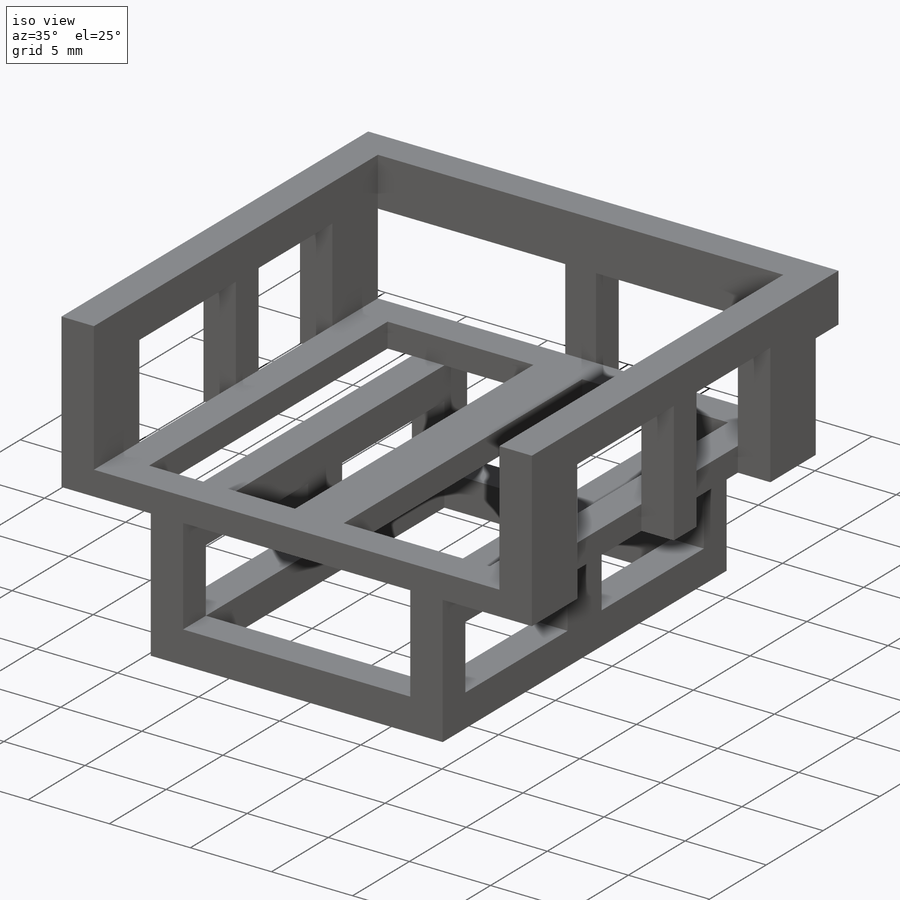
[diagram: iso view]
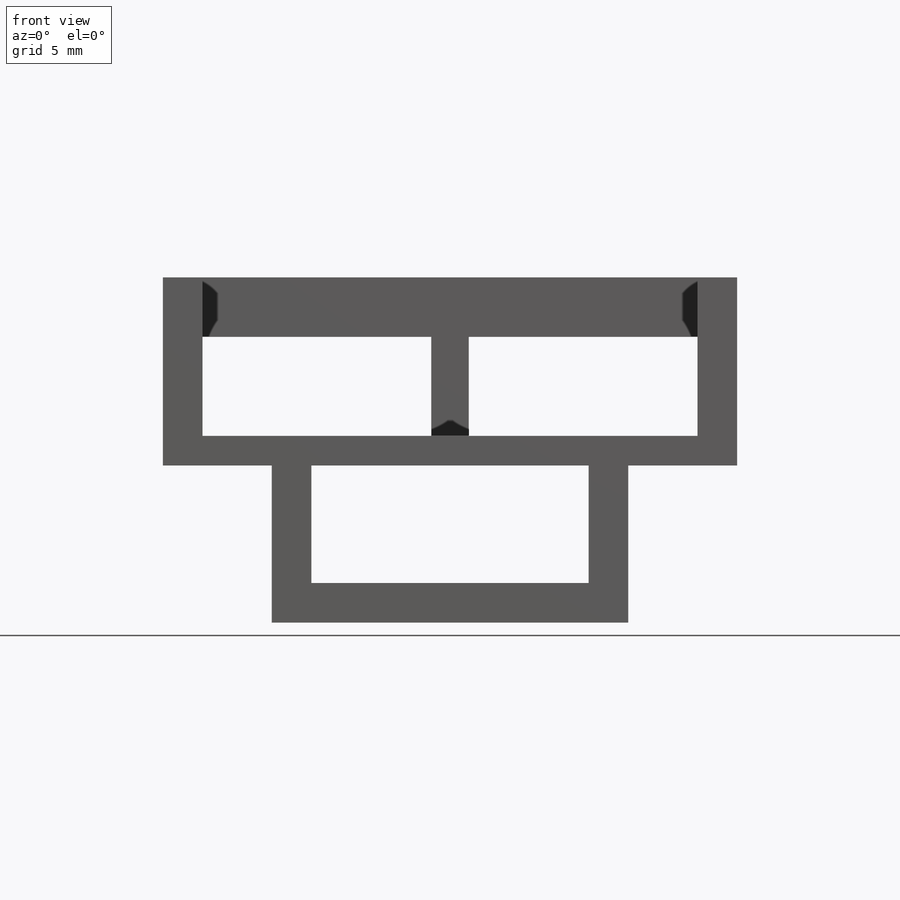
[diagram: front view]
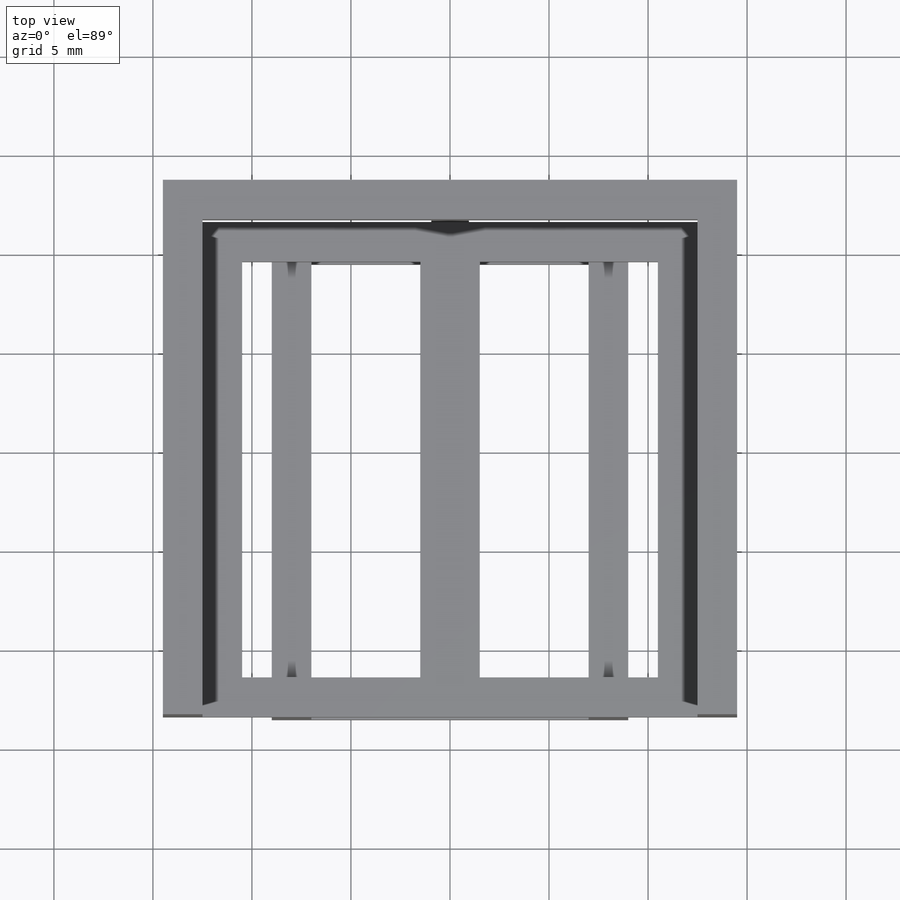
[diagram: top view]
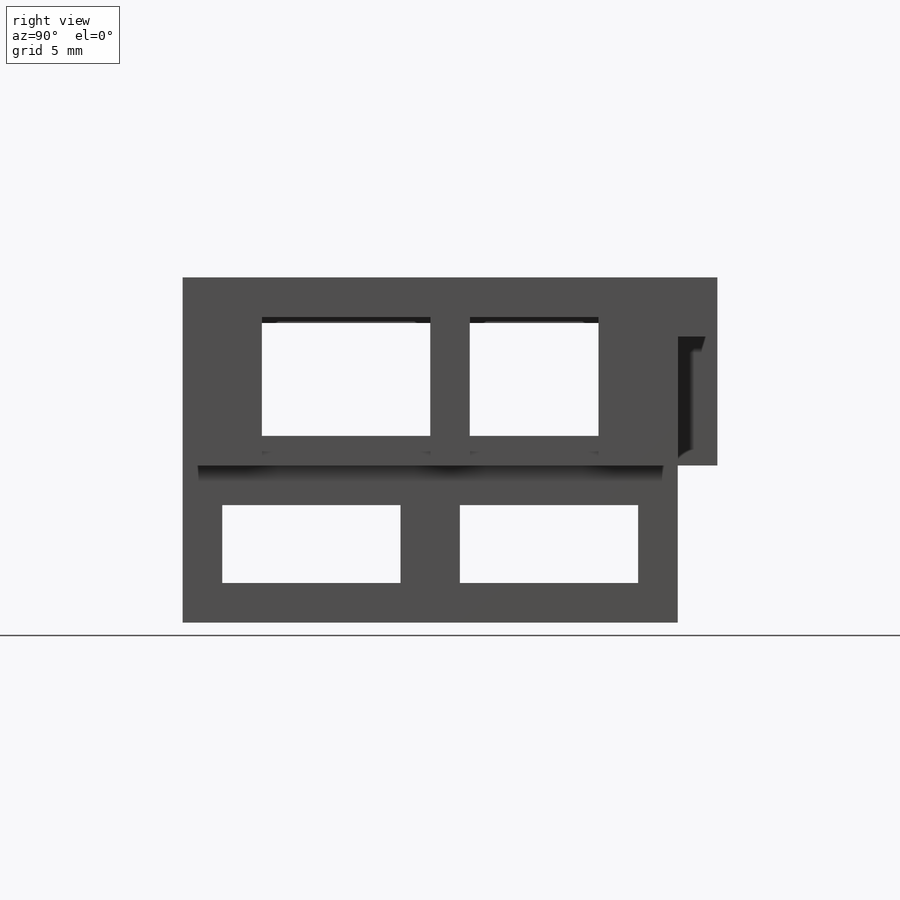
[diagram: right view]
SOLIDWORKS PART (.sldprt)
format: sldprt  version: not decoded by parser v0  size: 367,104 bytes
history: native  units: mm
features: sketch x7, extrude x6, plane x6, material x1, cut_extrude x1 (+13 scaffold rows collapsed)
feature tree (34):
  scaffold x13  (default folders/planes/origin — collapsed)
  material  "Material <not specified>"
  sketch  "Sketch1"  dims[D1=25.0mm D2=25.0mm D3=12.5mm D4=11.5mm D5=2.0mm D6=2.0mm D7=2.0mm D8=1.5mm D9=1.5mm D10=2.0mm]
  extrude  "Boss-Extrude1"  Depth=1.5mm
  plane  "Plane1"  Offset=0mm
  sketch  "Sketch2"  dims[D1=9.5mm D2=25.0mm D3=2.0mm D4=4.0mm D5=4.0mm D6=1.0mm D7=1.0mm D8=2.0mm D9=7.3mm]
  extrude  "Boss-Extrude2"  Depth=2mm
  plane  "Plane2"  Offset=0mm
  sketch  "Sketch3"  dims[c1.D1=25.0mm c1.D2=9.5mm c1.D3=2.0mm c1.D4=4.0mm c1.D5=4.0mm c1.D6=1.0mm c1.D7=1.0mm c2.D3=7.2mm c2.D8=2.0mm c2.D9=7.3mm]
  extrude  "Boss-Extrude3"  Depth=2mm
  plane  "Plane6"  Offset=0mm
  sketch  "Sketch10"  dims[c1.D1=2.0mm c1.D2=2.0mm c1.D3=~1.794346mm c2.D1=~11.55199mm c2.D2=11.55mm c2.D3=0.0mm]
  extrude  "Boss-Extrude8"  Depth=2mm
  plane  "Plane9"  Offset=0mm
  sketch  "Sketch12"  dims[c1.D1=7.0mm c1.D2=7.0mm c2.D1=2.0mm c2.D2=7.0mm c2.D3=7.0mm c2.D4=2.0mm]
  extrude  "Boss-Extrude10"  Depth=5.93mm
  plane  "Plane8"  Offset=0mm
  sketch  "Sketch11"  dims[c1.D1=25.0mm c1.D2=2.0mm c1.D3=20.0mm c1.D4=2.0mm c2.D3=2.0mm c2.D5=1.0mm c2.D6=1.0mm c2.D1=6.0mm c2.D7=13.5mm c2.D8=14.5mm c3.D7=14.5mm c3.D2=29.0mm c3.D1=7.0mm c4.D2=7.0mm c4.D3=2.0mm c4.D4=2.0mm]
  extrude  "Boss-Extrude11"  Depth=2mm
  plane  "Plane10"  Offset=0mm
  sketch  "Sketch13"  dims[D1=2.0mm D2=2.0mm D3=2.0mm D4=2.0mm D5=9.0mm D6=9.0mm D7=5.3mm]
  cut_extrude  "Cut-Extrude2"  [1 undecoded]
decode coverage: 13 of 14 modeling features carry decoded parameters
note: ~ marks probable driven/reference dimensions
note: 1 parameter value undecoded
note: suppression state not decoded; provenance and decode notes live in map.json
